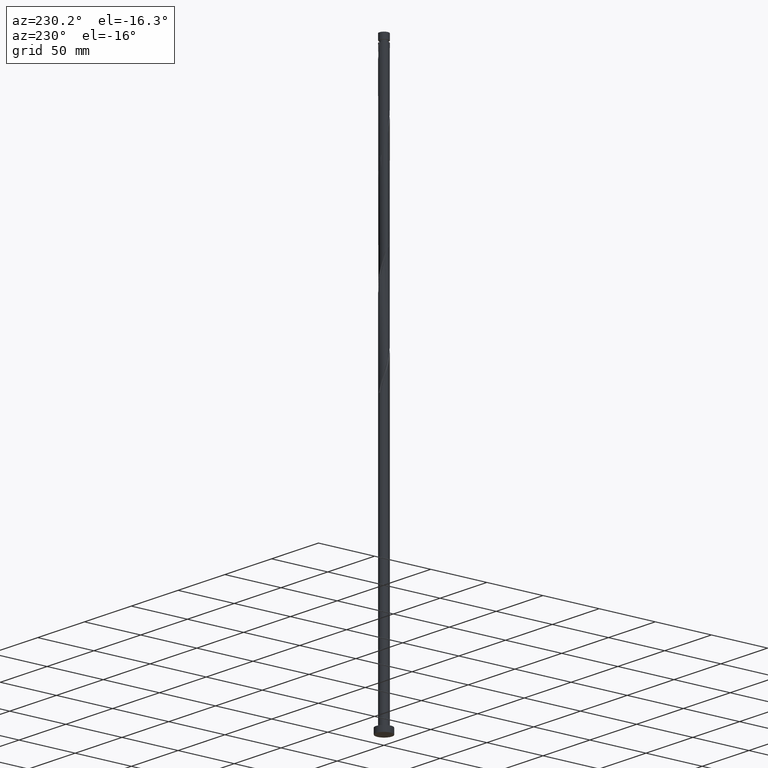
[diagram: clean part render]
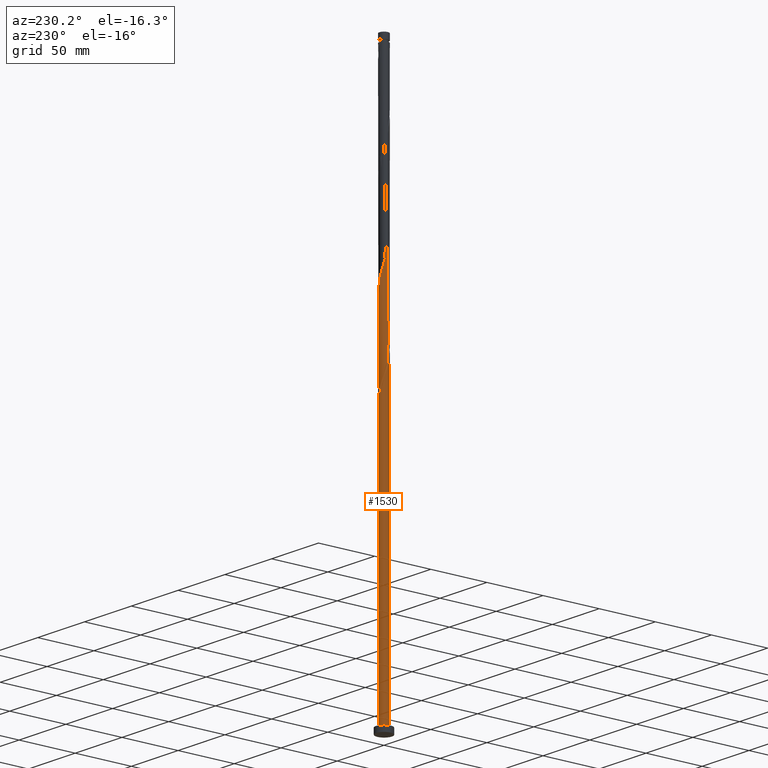
[diagram: same view with one face highlighted and labeled with its STEP entity id]
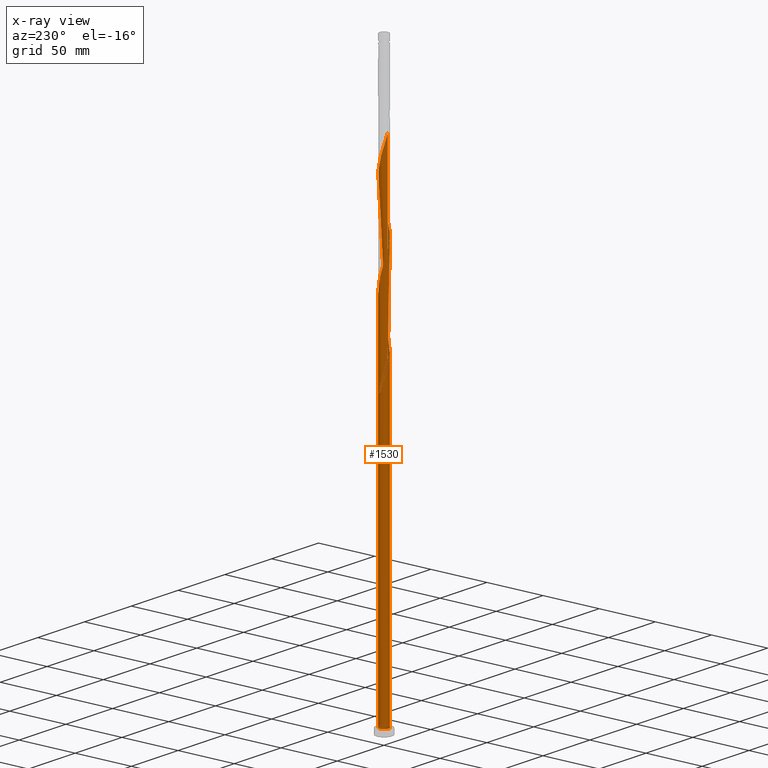
[diagram: x-ray of the same camera — body ghosted, the highlighted face saturated]
A machine part, auxiliary view. The second image highlights one B-rep face of the part: STEP entity #1530.
The next image is the same camera in x-ray: the body ghosted, the highlighted face saturated — about 0% of this face is hidden behind the body in this view.
In plain terms, the highlighted cylindrical surface (bore or boss wall) has radius 4 mm, axis along (-0, -0, -1).
Its self-contained STEP definition (entity closure, byte-faithful):
#9 = EDGE_CURVE ( 'NONE', #1057, #1385, #1880, .T. ) ;
#12 = CARTESIAN_POINT ( 'NONE',  ( -1.880568573737299243, -3.552276839441983469, 275.6535422064217187 ) ) ;
#34 = CARTESIAN_POINT ( 'NONE',  ( 3.999968234786374754, 0.01594116369702554964, 302.9972922064216618 ) ) ;
#44 = CARTESIAN_POINT ( 'NONE',  ( -0.01594116369702533106, 3.999968234786374754, 323.8306255397549762 ) ) ;
#53 = CARTESIAN_POINT ( 'NONE',  ( -3.926219933517934635, 0.7647202322722157497, 342.0597922064216618 ) ) ;
#63 = CARTESIAN_POINT ( 'NONE',  ( 1.151419143413270785, 3.850901564665826893, 319.9243755397549762 ) ) ;
#75 = CARTESIAN_POINT ( 'NONE',  ( 3.552276839441982137, -1.880568573737301019, 296.4868755397550899 ) ) ;
#87 = CARTESIAN_POINT ( 'NONE',  ( 3.920000000000004370, 0.7959899496853001244, 388.9347922064216050 ) ) ;
#97 = CARTESIAN_POINT ( 'NONE',  ( -3.096816308388497863, 2.562213429178616941, 257.4243755397549762 ) ) ;
#101 = CARTESIAN_POINT ( 'NONE',  ( 1.545449288303475388, -3.689388363574960916, 370.7056255397549762 ) ) ;
#118 = DIRECTION ( 'NONE',  ( 0.000000000000000000, 1.000000000000000000, -5.551115123125782702E-14 ) ) ;
#120 = CARTESIAN_POINT ( 'NONE',  ( 0.7959899496853012346, 3.919999999999999041, 243.1014588730883190 ) ) ;
#125 = CARTESIAN_POINT ( 'NONE',  ( -2.839676768298402987, 2.817132558398057984, 417.5806255397550331 ) ) ;
#136 = CARTESIAN_POINT ( 'NONE',  ( -2.817132558398053099, 2.839676768298400322, 256.1222922064216618 ) ) ;
#153 = CARTESIAN_POINT ( 'NONE',  ( -3.689388363574960916, -1.545449288303474500, 266.5389588730882338 ) ) ;
#154 = VECTOR ( 'NONE', #840, 1000.000000000000000 ) ;
#161 = ORIENTED_EDGE ( 'NONE', *, *, #922, .F. ) ;
#180 = EDGE_CURVE ( 'NONE', #1385, #416, #244, .T. ) ;
#186 = DIRECTION ( 'NONE',  ( 0.000000000000000000, -5.204170427930425070E-14, -1.000000000000000000 ) ) ;
#191 = CARTESIAN_POINT ( 'NONE',  ( 3.998398167202708464, 0.4099036485252169904, 304.2993755397549762 ) ) ;
#200 = CARTESIAN_POINT ( 'NONE',  ( 3.096816308388504080, 2.562213429178620050, 312.1118755397549762 ) ) ;
#207 =( BOUNDED_CURVE ( )  B_SPLINE_CURVE ( 2, ( #1170, #1471, #1794, #436, #1049, #1028, #1198, #1781, #876, #97, #136, #410, #1635, #255, #718, #1647, #1507, #1326, #1951, #565, #120 ),
 .UNSPECIFIED., .F., .T. ) 
 B_SPLINE_CURVE_WITH_KNOTS ( ( 3, 2, 2, 2, 2, 2, 2, 2, 2, 2, 3 ),
 ( 0.9295286902180870392, 0.9296875000000000000, 0.9375000000000000000, 0.9453125000000000000, 0.9531250000000000000, 0.9609375000000000000, 0.9687500000000000000, 0.9765625000000000000, 0.9843750000000000000, 0.9921875000000000000, 1.000000000000000000 ),
 .UNSPECIFIED. ) 
 CURVE ( )  GEOMETRIC_REPRESENTATION_ITEM ( )  RATIONAL_B_SPLINE_CURVE ( ( 0.9089165573359603290, 0.9090019243628651990, 0.9090909090909571333, 0.9047133878838632404, 0.9090909090909571333, 0.9047133878838632404, 0.9090909090909571333, 0.9047133878838632404, 0.9090909090909571333, 0.9047133878838632404, 0.9090909090909571333, 0.9047133878838632404, 0.9090909090909571333, 0.9047133878838632404, 0.9090909090909571333, 0.9047133878838632404, 0.9090909090909571333, 0.9047133878838632404, 0.9090909090909571333, 0.9047133878838632404, 0.9090909090909571333 ) ) 
 REPRESENTATION_ITEM ( '' )  );
#209 = CARTESIAN_POINT ( 'NONE',  ( -0.7959899496852996803, 3.920000000000004370, 243.1014588730883190 ) ) ;
#213 = CARTESIAN_POINT ( 'NONE',  ( -4.000000000000000000, -1.998025698020112396E-15, 266.5916558510852497 ) ) ;
#214 = CARTESIAN_POINT ( 'NONE',  ( 1.908822325761563299, -3.537174894352622001, 288.6743755397549762 ) ) ;
#220 = CIRCLE ( 'NONE', #349, 4.000000000000000000 ) ;
#222 = CARTESIAN_POINT ( 'NONE',  ( -4.000000000000000000, 0.000000000000000000, 500.0000000000000000 ) ) ;
#227 = CARTESIAN_POINT ( 'NONE',  ( 3.334708473430084918, -2.209008691072455566, 295.1847922064216618 ) ) ;
#239 = CARTESIAN_POINT ( 'NONE',  ( 2.817132558398058872, 2.839676768298401655, 313.4139588730883474 ) ) ;
#244 = LINE ( 'NONE', #222, #154 ) ;
#248 = CARTESIAN_POINT ( 'NONE',  ( -3.850901564665826893, 1.151419143413270119, 424.0910422064216618 ) ) ;
#255 = CARTESIAN_POINT ( 'NONE',  ( -1.880568573737295468, 3.552276839441978584, 252.2160422064217471 ) ) ;
#258 = CARTESIAN_POINT ( 'NONE',  ( -3.117140107418185924, 2.537448808407611001, 418.8827088730882906 ) ) ;
#272 = CARTESIAN_POINT ( 'NONE',  ( 3.701589202053905847, -1.515993858575283904, 381.1222922064216050 ) ) ;
#285 = CARTESIAN_POINT ( 'NONE',  ( -0.3780213211311619914, -4.001538302370041933, 364.1952088730882338 ) ) ;
#292 = CARTESIAN_POINT ( 'NONE',  ( -4.000000000000000000, 0.000000000000000000, 500.0000000000000000 ) ) ;
#321 = CARTESIAN_POINT ( 'NONE',  ( -3.316995601370563040, -2.235517877470091452, 269.1431255397549194 ) ) ;
#345 = CARTESIAN_POINT ( 'NONE',  ( -4.000000000000005329, -2.436957649404176998E-15, 427.9445952284248165 ) ) ;
#348 = CARTESIAN_POINT ( 'NONE',  ( -3.537174894352622001, -1.908822325761563299, 267.8410422064216618 ) ) ;
#349 = AXIS2_PLACEMENT_3D ( 'NONE', #919, #186, #118 ) ;
#359 = CARTESIAN_POINT ( 'NONE',  ( -3.096816308388504080, -2.562213429178620494, 353.7785422064218324 ) ) ;
#370 = CARTESIAN_POINT ( 'NONE',  ( -2.562213429178620050, 3.096816308388504080, 332.9452088730882906 ) ) ;
#383 = CARTESIAN_POINT ( 'NONE',  ( 3.117140107418185035, -2.537448808407611001, 293.8827088730883474 ) ) ;
#393 = CARTESIAN_POINT ( 'NONE',  ( -2.209008691072454678, -3.334708473430084474, 357.6847922064216050 ) ) ;
#399 = CARTESIAN_POINT ( 'NONE',  ( -3.701589202053905847, 1.515993858575284570, 256.1222922064216618 ) ) ;
#404 = CARTESIAN_POINT ( 'NONE',  ( -1.908822325761563965, 3.537174894352621557, 330.3410422064216618 ) ) ;
#410 = CARTESIAN_POINT ( 'NONE',  ( -2.537448808407606560, 3.117140107418181039, 254.8202088730883190 ) ) ;
#412 = CARTESIAN_POINT ( 'NONE',  ( 3.926219933517933747, -0.7647202322722179701, 383.7264588730884043 ) ) ;
#416 = VERTEX_POINT ( 'NONE', #213 ) ;
#421 = CARTESIAN_POINT ( 'NONE',  ( -3.117140107418185924, 2.537448808407611001, 252.2160422064216903 ) ) ;
#422 = AXIS2_PLACEMENT_3D ( 'NONE', #673, #1904, #510 ) ;
#427 = CARTESIAN_POINT ( 'NONE',  ( -4.000000000000002665, 0.3859192597159445404, 426.6686151230088058 ) ) ;
#436 = CARTESIAN_POINT ( 'NONE',  ( -3.998398167202702247, 0.4099036485252162132, 265.2368755397549762 ) ) ;
#440 = CARTESIAN_POINT ( 'NONE',  ( -1.545449288303474944, 3.689388363574960916, 412.3722922064216618 ) ) ;
#449 = CARTESIAN_POINT ( 'NONE',  ( -1.908822325761563965, 3.537174894352621557, 413.6743755397550331 ) ) ;
#462 = VERTEX_POINT ( 'NONE', #1498 ) ;
#494 = CARTESIAN_POINT ( 'NONE',  ( 0.000000000000000000, 0.000000000000000000, 5.000000000000000000 ) ) ;
#504 = CARTESIAN_POINT ( 'NONE',  ( -3.117140107418185924, 2.537448808407611001, 335.5493755397549194 ) ) ;
#505 = AXIS2_PLACEMENT_3D ( 'NONE', #698, #828, #1448 ) ;
#510 = DIRECTION ( 'NONE',  ( 1.000000000000000000, 0.000000000000000000, 0.000000000000000000 ) ) ;
#512 = CARTESIAN_POINT ( 'NONE',  ( 2.209008691072455566, 3.334708473430084474, 316.0181255397550331 ) ) ;
#518 = CYLINDRICAL_SURFACE ( 'NONE', #505, 4.000000000000000000 ) ;
#522 = CARTESIAN_POINT ( 'NONE',  ( -3.998398167202707576, -0.4099036485252157136, 345.9660422064217755 ) ) ;
#531 = CARTESIAN_POINT ( 'NONE',  ( -2.839676768298402987, 2.817132558398057984, 334.2472922064216050 ) ) ;
#543 = CARTESIAN_POINT ( 'NONE',  ( -1.182076250845385479, 3.841601832797301608, 244.4035422064217187 ) ) ;
#547 = CARTESIAN_POINT ( 'NONE',  ( -3.999968234786374754, -0.01594116369702693048, 344.6639588730882906 ) ) ;
#558 = CARTESIAN_POINT ( 'NONE',  ( 2.537448808407610112, 3.117140107418186368, 398.0493755397550331 ) ) ;
#565 = CARTESIAN_POINT ( 'NONE',  ( 0.4099036485252164352, 3.998398167202702247, 244.4035422064216618 ) ) ;
#567 = CARTESIAN_POINT ( 'NONE',  ( 1.515993858575283904, 3.701589202053905847, 401.9556255397549762 ) ) ;
#571 = ORIENTED_EDGE ( 'NONE', *, *, #594, .T. ) ;
#576 = CARTESIAN_POINT ( 'NONE',  ( -0.7959899496852996803, 3.920000000000004370, 243.1014588730883190 ) ) ;
#580 = CARTESIAN_POINT ( 'NONE',  ( 4.001538302370041933, -0.3780213211311623245, 385.0285422064216618 ) ) ;
#583 = ORIENTED_EDGE ( 'NONE', *, *, #1692, .T. ) ;
#589 = CARTESIAN_POINT ( 'NONE',  ( -3.334708473430085807, 2.209008691072454678, 420.1847922064216618 ) ) ;
#594 = EDGE_CURVE ( 'NONE', #1549, #1723, #220, .T. ) ;
#616 = CARTESIAN_POINT ( 'NONE',  ( -4.000000000000000000, 0.000000000000000000, 5.000000000000000000 ) ) ;
#622 =( BOUNDED_CURVE ( )  B_SPLINE_CURVE ( 2, ( #576, #543, #743, #1814, #1307, #1182, #1918, #421, #1157, #1770, #399, #1004, #1226, #1632, #1180 ),
 .UNSPECIFIED., .F., .T. ) 
 B_SPLINE_CURVE_WITH_KNOTS ( ( 3, 2, 2, 2, 2, 2, 2, 3 ),
 ( 0.000000000000000000, 0.007812500000000000000, 0.01562500000000000000, 0.02343750000000000000, 0.03125000000000000000, 0.03906249999999999306, 0.04687500000000000000, 0.05452869021808706695 ),
 .UNSPECIFIED. ) 
 CURVE ( )  GEOMETRIC_REPRESENTATION_ITEM ( )  RATIONAL_B_SPLINE_CURVE ( ( 0.9090909090909637946, 0.9047133878838696797, 0.9090909090909637946, 0.9047133878838696797, 0.9090909090909637946, 0.9047133878838696797, 0.9090909090909637946, 0.9047133878838696797, 0.9090909090909637946, 0.9047133878838696797, 0.9090909090909637946, 0.9047133878838696797, 0.9090909090909637946, 0.9048023726119616139, 0.9089165573359669903 ) ) 
 REPRESENTATION_ITEM ( '' )  );
#626 = CARTESIAN_POINT ( 'NONE',  ( -1.515993858575283681, -3.701589202053905847, 276.9556255397549762 ) ) ;
#652 = CARTESIAN_POINT ( 'NONE',  ( -1.182076250845385479, 3.841601832797301608, 327.7368755397550331 ) ) ;
#664 = CARTESIAN_POINT ( 'NONE',  ( 3.926219933517933747, -0.7647202322722179701, 300.3931255397549194 ) ) ;
#673 = CARTESIAN_POINT ( 'NONE',  ( 0.000000000000000000, 0.000000000000000000, 5.000000000000000000 ) ) ;
#676 = CARTESIAN_POINT ( 'NONE',  ( -3.689388363574960916, -1.545449288303474500, 349.8722922064217187 ) ) ;
#690 = CARTESIAN_POINT ( 'NONE',  ( -1.545449288303474944, 3.689388363574960916, 329.0389588730882906 ) ) ;
#698 = CARTESIAN_POINT ( 'NONE',  ( 0.000000000000000000, 0.000000000000000000, 500.0000000000000000 ) ) ;
#701 = CARTESIAN_POINT ( 'NONE',  ( -0.3780213211311619914, -4.001538302370041933, 280.8618755397549194 ) ) ;
#713 = CARTESIAN_POINT ( 'NONE',  ( 3.841601832797301608, 1.182076250845383258, 390.2368755397549194 ) ) ;
#718 = CARTESIAN_POINT ( 'NONE',  ( -1.515993858575281239, 3.701589202053900962, 250.9139588730883190 ) ) ;
#720 = CARTESIAN_POINT ( 'NONE',  ( 3.096816308388504080, 2.562213429178620050, 395.4452088730882906 ) ) ;
#733 = CARTESIAN_POINT ( 'NONE',  ( -0.7647202322722158607, -3.926219933517934635, 362.8931255397549762 ) ) ;
#743 = CARTESIAN_POINT ( 'NONE',  ( -1.545449288303474944, 3.689388363574960916, 245.7056255397549762 ) ) ;
#745 = CARTESIAN_POINT ( 'NONE',  ( 2.235517877470091452, -3.316995601370563040, 373.3097922064216618 ) ) ;
#760 = ORIENTED_EDGE ( 'NONE', *, *, #1767, .F. ) ;
#776 = CIRCLE ( 'NONE', #1250, 4.000000000000000000 ) ;
#785 = CARTESIAN_POINT ( 'NONE',  ( -2.817132558398058872, -2.839676768298402099, 271.7472922064217187 ) ) ;
#809 = CARTESIAN_POINT ( 'NONE',  ( 1.182076250845385479, -3.841601832797301608, 286.0702088730882906 ) ) ;
#821 = CARTESIAN_POINT ( 'NONE',  ( -0.7647202322722158607, -3.926219933517934635, 279.5597922064217187 ) ) ;
#828 = DIRECTION ( 'NONE',  ( -0.000000000000000000, -0.000000000000000000, -1.000000000000000000 ) ) ;
#832 = CARTESIAN_POINT ( 'NONE',  ( -3.841601832797301608, -1.182076250845385479, 348.5702088730882906 ) ) ;
#840 = DIRECTION ( 'NONE',  ( -0.000000000000000000, -0.000000000000000000, -1.000000000000000000 ) ) ;
#844 = CARTESIAN_POINT ( 'NONE',  ( 3.701589202053905847, -1.515993858575283904, 297.7889588730882338 ) ) ;
#858 = CARTESIAN_POINT ( 'NONE',  ( 3.537174894352622001, 1.908822325761563299, 309.5077088730881769 ) ) ;
#870 = CARTESIAN_POINT ( 'NONE',  ( -4.000000000000005329, -2.436957649404177787E-15, 427.9445952284248733 ) ) ;
#876 = CARTESIAN_POINT ( 'NONE',  ( -3.316995601370557711, 2.235517877470090120, 258.7264588730883474 ) ) ;
#879 = CARTESIAN_POINT ( 'NONE',  ( 0.7959899496853002354, -3.920000000000004370, 368.1014588730882338 ) ) ;
#891 = CARTESIAN_POINT ( 'NONE',  ( 3.537174894352622001, 1.908822325761563299, 392.8410422064217755 ) ) ;
#894 = ORIENTED_EDGE ( 'NONE', *, *, #9, .F. ) ;
#902 = CARTESIAN_POINT ( 'NONE',  ( 3.998398167202708464, 0.4099036485252169904, 387.6327088730883474 ) ) ;
#919 = CARTESIAN_POINT ( 'NONE',  ( 0.000000000000000000, 0.000000000000000000, 243.1014588730885464 ) ) ;
#922 = EDGE_CURVE ( 'NONE', #1057, #1216, #1725, .T. ) ;
#929 = CARTESIAN_POINT ( 'NONE',  ( -4.000000000000005329, 3.135893877722774570E-15, 261.2779285617580740 ) ) ;
#934 = CARTESIAN_POINT ( 'NONE',  ( -3.920000000000004370, -0.7959899496853005685, 263.9347922064216050 ) ) ;
#946 = ORIENTED_EDGE ( 'NONE', *, *, #922, .T. ) ;
#962 = CARTESIAN_POINT ( 'NONE',  ( -2.817132558398058872, -2.839676768298402099, 355.0806255397549762 ) ) ;
#970 = CARTESIAN_POINT ( 'NONE',  ( 2.537448808407610112, 3.117140107418186368, 314.7160422064216618 ) ) ;
#981 = CARTESIAN_POINT ( 'NONE',  ( -3.334708473430085807, 2.209008691072454678, 336.8514588730883474 ) ) ;
#990 = CARTESIAN_POINT ( 'NONE',  ( 0.7959899496853012346, 3.919999999999999041, 243.1014588730883190 ) ) ;
#995 = CARTESIAN_POINT ( 'NONE',  ( -1.880568573737299243, -3.552276839441983469, 358.9868755397550331 ) ) ;
#1004 = CARTESIAN_POINT ( 'NONE',  ( -3.850901564665826893, 1.151419143413270119, 257.4243755397549762 ) ) ;
#1008 = CARTESIAN_POINT ( 'NONE',  ( -3.926219933517934635, 0.7647202322722157497, 425.3931255397549194 ) ) ;
#1017 = CARTESIAN_POINT ( 'NONE',  ( 0.3780213211311625465, 4.001538302370041933, 405.8618755397549194 ) ) ;
#1028 = CARTESIAN_POINT ( 'NONE',  ( -3.841601832797293614, 1.182076250845384369, 262.6327088730882906 ) ) ;
#1041 = CARTESIAN_POINT ( 'NONE',  ( -2.235517877470092341, 3.316995601370563040, 414.9764588730883474 ) ) ;
#1049 = CARTESIAN_POINT ( 'NONE',  ( -3.919999999999999041, 0.7959899496853005685, 263.9347922064217187 ) ) ;
#1053 = CARTESIAN_POINT ( 'NONE',  ( -3.701589202053905847, 1.515993858575284570, 422.7889588730882338 ) ) ;
#1057 = VERTEX_POINT ( 'NONE', #1576 ) ;
#1075 = ORIENTED_EDGE ( 'NONE', *, *, #1756, .T. ) ;
#1082 = CARTESIAN_POINT ( 'NONE',  ( -3.999968234786374754, -0.01594116369702693048, 261.3306255397549194 ) ) ;
#1090 = CARTESIAN_POINT ( 'NONE',  ( -2.209008691072454678, -3.334708473430084474, 274.3514588730883474 ) ) ;
#1104 = DIRECTION ( 'NONE',  ( 0.000000000000000000, 0.000000000000000000, 1.000000000000000000 ) ) ;
#1108 = CARTESIAN_POINT ( 'NONE',  ( -3.998398167202707576, -0.4099036485252157136, 262.6327088730883474 ) ) ;
#1118 = CARTESIAN_POINT ( 'NONE',  ( 0.3780213211311625465, 4.001538302370041933, 322.5285422064216618 ) ) ;
#1128 = CARTESIAN_POINT ( 'NONE',  ( 1.515993858575283904, 3.701589202053905847, 318.6222922064216050 ) ) ;
#1139 = CARTESIAN_POINT ( 'NONE',  ( -3.537174894352622001, -1.908822325761563299, 351.1743755397550899 ) ) ;
#1149 = CARTESIAN_POINT ( 'NONE',  ( -4.001538302370041933, 0.3780213211311616028, 343.3618755397550331 ) ) ;
#1157 = CARTESIAN_POINT ( 'NONE',  ( -3.334708473430085807, 2.209008691072454678, 253.5181255397550615 ) ) ;
#1161 = CARTESIAN_POINT ( 'NONE',  ( -3.316995601370563040, -2.235517877470091452, 352.4764588730882906 ) ) ;
#1170 = CARTESIAN_POINT ( 'NONE',  ( -4.000000000000000000, -1.998025698020112396E-15, 266.5916558510852497 ) ) ;
#1174 = CARTESIAN_POINT ( 'NONE',  ( 1.880568573737301685, 3.552276839441981693, 400.6535422064217755 ) ) ;
#1180 = CARTESIAN_POINT ( 'NONE',  ( -4.000000000000005329, 3.135893877722774570E-15, 261.2779285617580740 ) ) ;
#1182 = CARTESIAN_POINT ( 'NONE',  ( -2.562213429178620050, 3.096816308388504080, 249.6118755397549762 ) ) ;
#1187 = CARTESIAN_POINT ( 'NONE',  ( -3.552276839441982581, 1.880568573737299243, 421.4868755397550331 ) ) ;
#1198 = CARTESIAN_POINT ( 'NONE',  ( -3.689388363574955143, 1.545449288303473390, 261.3306255397550331 ) ) ;
#1203 = CARTESIAN_POINT ( 'NONE',  ( 0.4099036485252156026, -3.998398167202707576, 366.7993755397550331 ) ) ;
#1214 = CARTESIAN_POINT ( 'NONE',  ( 3.850901564665827781, -1.151419143413270341, 382.4243755397549762 ) ) ;
#1216 = VERTEX_POINT ( 'NONE', #616 ) ;
#1226 = CARTESIAN_POINT ( 'NONE',  ( -3.926219933517934635, 0.7647202322722157497, 258.7264588730882906 ) ) ;
#1246 = EDGE_LOOP ( 'NONE', ( #1865, #894, #946, #1075, #583, #161, #1690, #571, #760 ) ) ;
#1250 = AXIS2_PLACEMENT_3D ( 'NONE', #494, #1104, #1720 ) ;
#1267 = CARTESIAN_POINT ( 'NONE',  ( 4.001538302370041933, -0.3780213211311623245, 301.6952088730883474 ) ) ;
#1275 = VECTOR ( 'NONE', #1364, 1000.000000000000000 ) ;
#1280 = CARTESIAN_POINT ( 'NONE',  ( 3.850901564665827781, -1.151419143413270341, 299.0910422064216618 ) ) ;
#1288 = CARTESIAN_POINT ( 'NONE',  ( 2.562213429178620050, -3.096816308388504080, 291.2785422064217187 ) ) ;
#1299 = CARTESIAN_POINT ( 'NONE',  ( 3.920000000000004370, 0.7959899496853001244, 305.6014588730882906 ) ) ;
#1307 = CARTESIAN_POINT ( 'NONE',  ( -2.235517877470092341, 3.316995601370563040, 248.3097922064216618 ) ) ;
#1311 = CARTESIAN_POINT ( 'NONE',  ( -0.7959899496852997913, 3.920000000000004370, 326.4347922064216050 ) ) ;
#1320 = CARTESIAN_POINT ( 'NONE',  ( 3.316995601370563040, 2.235517877470092785, 394.1431255397549762 ) ) ;
#1326 = CARTESIAN_POINT ( 'NONE',  ( -0.3780213211311605481, 4.001538302370035716, 247.0077088730883190 ) ) ;
#1330 = CARTESIAN_POINT ( 'NONE',  ( 3.117140107418185035, -2.537448808407611001, 377.2160422064217187 ) ) ;
#1343 = CARTESIAN_POINT ( 'NONE',  ( 0.01594116369702586189, -3.999968234786374754, 365.4972922064216618 ) ) ;
#1356 = CARTESIAN_POINT ( 'NONE',  ( 2.209008691072455566, 3.334708473430084474, 399.3514588730882338 ) ) ;
#1364 = DIRECTION ( 'NONE',  ( -0.000000000000000000, -0.000000000000000000, -1.000000000000000000 ) ) ;
#1385 = VERTEX_POINT ( 'NONE', #345 ) ;
#1394 = CARTESIAN_POINT ( 'NONE',  ( -2.537448808407611001, -3.117140107418185924, 273.0493755397549762 ) ) ;
#1417 = FACE_OUTER_BOUND ( 'NONE', #1246, .T. ) ;
#1420 = CARTESIAN_POINT ( 'NONE',  ( -1.515993858575283681, -3.701589202053905847, 360.2889588730883474 ) ) ;
#1429 = CARTESIAN_POINT ( 'NONE',  ( 3.689388363574960916, 1.545449288303475166, 308.2056255397550331 ) ) ;
#1440 = CARTESIAN_POINT ( 'NONE',  ( 1.880568573737301685, 3.552276839441981693, 317.3202088730883474 ) ) ;
#1448 = DIRECTION ( 'NONE',  ( -1.000000000000000000, 0.000000000000000000, 0.000000000000000000 ) ) ;
#1452 = CARTESIAN_POINT ( 'NONE',  ( 3.841601832797301608, 1.182076250845383258, 306.9035422064216618 ) ) ;
#1463 = CARTESIAN_POINT ( 'NONE',  ( 2.839676768298402099, -2.817132558398058872, 292.5806255397549194 ) ) ;
#1471 = CARTESIAN_POINT ( 'NONE',  ( -4.000000000000000888, 0.007970613497037511500, 266.5653022965679497 ) ) ;
#1474 = CARTESIAN_POINT ( 'NONE',  ( 1.151419143413270785, 3.850901564665826893, 403.2577088730882906 ) ) ;
#1487 = CARTESIAN_POINT ( 'NONE',  ( 1.908822325761563299, -3.537174894352622001, 372.0077088730884043 ) ) ;
#1498 = CARTESIAN_POINT ( 'NONE',  ( 4.000000000000000000, 0.000000000000000000, 5.000000000000000000 ) ) ;
#1499 = CARTESIAN_POINT ( 'NONE',  ( -2.562213429178620050, 3.096816308388504080, 416.2785422064216618 ) ) ;
#1507 = CARTESIAN_POINT ( 'NONE',  ( -0.7647202322722140844, 3.926219933517929306, 248.3097922064216903 ) ) ;
#1511 = CARTESIAN_POINT ( 'NONE',  ( -0.4099036485252167683, 3.998398167202708464, 408.4660422064217187 ) ) ;
#1530 = ADVANCED_FACE ( 'NONE', ( #1417 ), #518, .T. ) ;
#1549 = VERTEX_POINT ( 'NONE', #209 ) ;
#1575 = CARTESIAN_POINT ( 'NONE',  ( 3.316995601370563040, 2.235517877470092785, 310.8097922064216618 ) ) ;
#1576 = CARTESIAN_POINT ( 'NONE',  ( -4.000000000000005329, 3.135893877722774570E-15, 261.2779285617580740 ) ) ;
#1583 = CARTESIAN_POINT ( 'NONE',  ( -3.552276839441982581, 1.880568573737299243, 338.1535422064216618 ) ) ;
#1594 = CARTESIAN_POINT ( 'NONE',  ( -3.701589202053905847, 1.515993858575284570, 339.4556255397550331 ) ) ;
#1608 = CARTESIAN_POINT ( 'NONE',  ( -2.537448808407611001, -3.117140107418185924, 356.3827088730882338 ) ) ;
#1619 = CARTESIAN_POINT ( 'NONE',  ( 0.7959899496853002354, -3.920000000000004370, 284.7681255397549194 ) ) ;
#1626 = CARTESIAN_POINT ( 'NONE',  ( 3.999968234786374754, 0.01594116369702554964, 386.3306255397549194 ) ) ;
#1632 = CARTESIAN_POINT ( 'NONE',  ( -4.000000000000004441, 0.3859192597159320504, 260.0019484563421202 ) ) ;
#1635 = CARTESIAN_POINT ( 'NONE',  ( -2.209008691072452013, 3.334708473430080478, 253.5181255397550046 ) ) ;
#1637 = CARTESIAN_POINT ( 'NONE',  ( -0.01594116369702533106, 3.999968234786374754, 407.1639588730882906 ) ) ;
#1647 = CARTESIAN_POINT ( 'NONE',  ( -1.151419143413266566, 3.850901564665822452, 249.6118755397550046 ) ) ;
#1651 = CARTESIAN_POINT ( 'NONE',  ( 3.552276839441982137, -1.880568573737301019, 379.8202088730882906 ) ) ;
#1664 = CARTESIAN_POINT ( 'NONE',  ( 2.562213429178620050, -3.096816308388504080, 374.6118755397549762 ) ) ;
#1676 = CARTESIAN_POINT ( 'NONE',  ( -0.7959899496852997913, 3.920000000000004370, 409.7681255397550331 ) ) ;
#1684 = CIRCLE ( 'NONE', #422, 4.000000000000000000 ) ;
#1690 = ORIENTED_EDGE ( 'NONE', *, *, #1768, .F. ) ;
#1692 = EDGE_CURVE ( 'NONE', #462, #1216, #1684, .T. ) ;
#1699 = CARTESIAN_POINT ( 'NONE',  ( -3.841601832797301608, -1.182076250845385479, 265.2368755397549762 ) ) ;
#1720 = DIRECTION ( 'NONE',  ( 1.000000000000000000, 0.000000000000000000, 0.000000000000000000 ) ) ;
#1723 = VERTEX_POINT ( 'NONE', #990 ) ;
#1725 = LINE ( 'NONE', #292, #1275 ) ;
#1734 = CARTESIAN_POINT ( 'NONE',  ( -3.850901564665826893, 1.151419143413270119, 340.7577088730882906 ) ) ;
#1743 = CARTESIAN_POINT ( 'NONE',  ( -2.235517877470092341, 3.316995601370563040, 331.6431255397549194 ) ) ;
#1754 = CARTESIAN_POINT ( 'NONE',  ( 2.235517877470091452, -3.316995601370563040, 289.9764588730882338 ) ) ;
#1756 = EDGE_CURVE ( 'NONE', #1216, #462, #776, .T. ) ;
#1762 = CARTESIAN_POINT ( 'NONE',  ( -3.920000000000004370, -0.7959899496853005685, 347.2681255397550899 ) ) ;
#1767 = EDGE_CURVE ( 'NONE', #416, #1723, #207, .T. ) ;
#1768 = EDGE_CURVE ( 'NONE', #1549, #1057, #622, .T. ) ;
#1770 = CARTESIAN_POINT ( 'NONE',  ( -3.552276839441982581, 1.880568573737299243, 254.8202088730883190 ) ) ;
#1774 = CARTESIAN_POINT ( 'NONE',  ( 0.4099036485252156026, -3.998398167202707576, 283.4660422064216050 ) ) ;
#1781 = CARTESIAN_POINT ( 'NONE',  ( -3.537174894352615784, 1.908822325761561745, 260.0285422064216618 ) ) ;
#1785 = CARTESIAN_POINT ( 'NONE',  ( -1.151419143413270119, -3.850901564665826893, 361.5910422064215481 ) ) ;
#1794 = CARTESIAN_POINT ( 'NONE',  ( -3.999968234786370314, 0.01594116369702804070, 266.5389588730882906 ) ) ;
#1796 = CARTESIAN_POINT ( 'NONE',  ( -1.182076250845385479, 3.841601832797301608, 411.0702088730882906 ) ) ;
#1807 = CARTESIAN_POINT ( 'NONE',  ( 3.689388363574960916, 1.545449288303475166, 391.5389588730882338 ) ) ;
#1814 = CARTESIAN_POINT ( 'NONE',  ( -1.908822325761563965, 3.537174894352621557, 247.0077088730883190 ) ) ;
#1817 = CARTESIAN_POINT ( 'NONE',  ( 1.182076250845385479, -3.841601832797301608, 369.4035422064217187 ) ) ;
#1843 = CARTESIAN_POINT ( 'NONE',  ( -4.000000000000005329, -0.007970613497037780382, 261.3042821162753739 ) ) ;
#1865 = ORIENTED_EDGE ( 'NONE', *, *, #180, .F. ) ;
#1873 = CARTESIAN_POINT ( 'NONE',  ( -0.4099036485252167683, 3.998398167202708464, 325.1327088730882906 ) ) ;
#1880 =( BOUNDED_CURVE ( )  B_SPLINE_CURVE ( 2, ( #929, #1843, #1082, #1108, #934, #1699, #153, #348, #321, #1982, #785, #1394, #1090, #12, #626, #1909, #821, #701, #1922, #1774, #1619, #809, #1886, #214, #1754, #1288, #1463, #383, #227, #75, #844, #1280, #664, #1267, #34, #191, #1299, #1452, #1429, #858, #1575, #200, #239, #970, #512, #1440, #1128, #63, #1896, #1118, #44, #1873, #1311, #652, #690, #404, #1743, #370, #531, #504, #981, #1583, #1594, #1734, #53, #1149, #547, #522, #1762, #832, #676, #1139, #1161, #359, #962, #1608, #393, #995, #1420, #1785, #733, #285, #1343, #1203, #879, #1817, #101, #1487, #745, #1664, #1955, #1330, #1943, #1651, #272, #1214, #412, #580, #1626, #902, #87, #713, #1807, #891, #1320, #720, #1934, #558, #1356, #1174, #567, #1474, #1965, #1017, #1637, #1511, #1676, #1796, #440, #449, #1041, #1499, #125, #258, #589, #1187, #1053, #248, #1008, #427, #870 ),
 .UNSPECIFIED., .F., .T. ) 
 B_SPLINE_CURVE_WITH_KNOTS ( ( 3, 2, 2, 2, 2, 2, 2, 2, 2, 2, 2, 2, 2, 2, 2, 2, 2, 2, 2, 2, 2, 2, 2, 2, 2, 2, 2, 2, 2, 2, 2, 2, 2, 2, 2, 2, 2, 2, 2, 2, 2, 2, 2, 2, 2, 2, 2, 2, 2, 2, 2, 2, 2, 2, 2, 2, 2, 2, 2, 2, 2, 2, 2, 2, 2, 3 ),
 ( 0.05452869021808706695, 0.05468750000000000000, 0.06250000000000000000, 0.07031250000000000000, 0.07812500000000000000, 0.08593750000000000000, 0.09375000000000000000, 0.1015625000000000000, 0.1093750000000000000, 0.1171875000000000000, 0.1250000000000000000, 0.1328125000000000000, 0.1406250000000000000, 0.1484375000000000000, 0.1562500000000000000, 0.1640625000000000000, 0.1718750000000000000, 0.1796875000000000000, 0.1875000000000000000, 0.1953125000000000000, 0.2031250000000000000, 0.2109375000000000000, 0.2187500000000000000, 0.2265625000000000000, 0.2343750000000000000, 0.2421875000000000000, 0.2500000000000000000, 0.2578125000000000000, 0.2656250000000000000, 0.2734375000000000000, 0.2812500000000000000, 0.2890625000000000000, 0.2968750000000000000, 0.3046875000000000000, 0.3125000000000000000, 0.3203125000000000000, 0.3281250000000000000, 0.3359375000000000000, 0.3437500000000000000, 0.3515625000000000000, 0.3593750000000000000, 0.3671875000000000000, 0.3750000000000000000, 0.3828125000000000000, 0.3906250000000000000, 0.3984375000000000000, 0.4062500000000000000, 0.4140625000000000000, 0.4218750000000000000, 0.4296875000000000000, 0.4375000000000000000, 0.4453125000000000000, 0.4531250000000000000, 0.4609375000000000000, 0.4687500000000000000, 0.4765625000000000000, 0.4843750000000000000, 0.4921875000000000000, 0.5000000000000000000, 0.5078125000000000000, 0.5156250000000000000, 0.5234375000000000000, 0.5312500000000000000, 0.5390625000000000000, 0.5468750000000000000, 0.5545286902180868172 ),
 .UNSPECIFIED. ) 
 CURVE ( )  GEOMETRIC_REPRESENTATION_ITEM ( )  RATIONAL_B_SPLINE_CURVE ( ( 0.9089165573359669903, 0.9090019243628718604, 0.9090909090909637946, 0.9047133878838696797, 0.9090909090909637946, 0.9047133878838696797, 0.9090909090909637946, 0.9047133878838696797, 0.9090909090909637946, 0.9047133878838696797, 0.9090909090909637946, 0.9047133878838696797, 0.9090909090909637946, 0.9047133878838696797, 0.9090909090909637946, 0.9047133878838696797, 0.9090909090909637946, 0.9047133878838696797, 0.9090909090909637946, 0.9047133878838696797, 0.9090909090909637946, 0.9047133878838696797, 0.9090909090909637946, 0.9047133878838696797, 0.9090909090909637946, 0.9047133878838696797, 0.9090909090909637946, 0.9047133878838696797, 0.9090909090909637946, 0.9047133878838696797, 0.9090909090909637946, 0.9047133878838696797, 0.9090909090909637946, 0.9047133878838696797, 0.9090909090909637946, 0.9047133878838696797, 0.9090909090909637946, 0.9047133878838696797, 0.9090909090909637946, 0.9047133878838696797, 0.9090909090909637946, 0.9047133878838696797, 0.9090909090909637946, 0.9047133878838696797, 0.9090909090909637946, 0.9047133878838696797, 0.9090909090909637946, 0.9047133878838696797, 0.9090909090909637946, 0.9047133878838696797, 0.9090909090909637946, 0.9047133878838696797, 0.9090909090909637946, 0.9047133878838696797, 0.9090909090909637946, 0.9047133878838696797, 0.9090909090909637946, 0.9047133878838696797, 0.9090909090909637946, 0.9047133878838696797, 0.9090909090909637946, 0.9047133878838696797, 0.9090909090909637946, 0.9047133878838696797, 0.9090909090909637946, 0.9047133878838696797, 0.9090909090909637946, 0.9047133878838696797, 0.9090909090909637946, 0.9047133878838696797, 0.9090909090909637946, 0.9047133878838696797, 0.9090909090909637946, 0.9047133878838696797, 0.9090909090909637946, 0.9047133878838696797, 0.9090909090909637946, 0.9047133878838696797, 0.9090909090909637946, 0.9047133878838696797, 0.9090909090909637946, 0.9047133878838696797, 0.9090909090909637946, 0.9047133878838696797, 0.9090909090909637946, 0.9047133878838696797, 0.9090909090909637946, 0.9047133878838696797, 0.9090909090909637946, 0.9047133878838696797, 0.9090909090909637946, 0.9047133878838696797, 0.9090909090909637946, 0.9047133878838696797, 0.9090909090909637946, 0.9047133878838696797, 0.9090909090909637946, 0.9047133878838696797, 0.9090909090909637946, 0.9047133878838696797, 0.9090909090909637946, 0.9047133878838696797, 0.9090909090909637946, 0.9047133878838696797, 0.9090909090909637946, 0.9047133878838696797, 0.9090909090909637946, 0.9047133878838696797, 0.9090909090909637946, 0.9047133878838696797, 0.9090909090909637946, 0.9047133878838696797, 0.9090909090909637946, 0.9047133878838696797, 0.9090909090909637946, 0.9047133878838696797, 0.9090909090909637946, 0.9047133878838696797, 0.9090909090909637946, 0.9047133878838696797, 0.9090909090909637946, 0.9047133878838696797, 0.9090909090909637946, 0.9047133878838696797, 0.9090909090909637946, 0.9047133878838696797, 0.9090909090909637946, 0.9047133878838696797, 0.9090909090909637946, 0.9048023726119617249, 0.9089165573359667682 ) ) 
 REPRESENTATION_ITEM ( '' )  );
#1886 = CARTESIAN_POINT ( 'NONE',  ( 1.545449288303475388, -3.689388363574960916, 287.3722922064216050 ) ) ;
#1896 = CARTESIAN_POINT ( 'NONE',  ( 0.7647202322722181922, 3.926219933517933747, 321.2264588730882338 ) ) ;
#1904 = DIRECTION ( 'NONE',  ( 0.000000000000000000, 0.000000000000000000, 1.000000000000000000 ) ) ;
#1909 = CARTESIAN_POINT ( 'NONE',  ( -1.151419143413270119, -3.850901564665826893, 278.2577088730884043 ) ) ;
#1918 = CARTESIAN_POINT ( 'NONE',  ( -2.839676768298402987, 2.817132558398057984, 250.9139588730883190 ) ) ;
#1922 = CARTESIAN_POINT ( 'NONE',  ( 0.01594116369702586189, -3.999968234786374754, 282.1639588730882906 ) ) ;
#1934 = CARTESIAN_POINT ( 'NONE',  ( 2.817132558398058872, 2.839676768298401655, 396.7472922064216618 ) ) ;
#1943 = CARTESIAN_POINT ( 'NONE',  ( 3.334708473430084918, -2.209008691072455566, 378.5181255397549762 ) ) ;
#1951 = CARTESIAN_POINT ( 'NONE',  ( 0.01594116369702782560, 3.999968234786370314, 245.7056255397550046 ) ) ;
#1955 = CARTESIAN_POINT ( 'NONE',  ( 2.839676768298402099, -2.817132558398058872, 375.9139588730882338 ) ) ;
#1965 = CARTESIAN_POINT ( 'NONE',  ( 0.7647202322722181922, 3.926219933517933747, 404.5597922064216618 ) ) ;
#1982 = CARTESIAN_POINT ( 'NONE',  ( -3.096816308388504080, -2.562213429178620494, 270.4452088730882906 ) ) ;